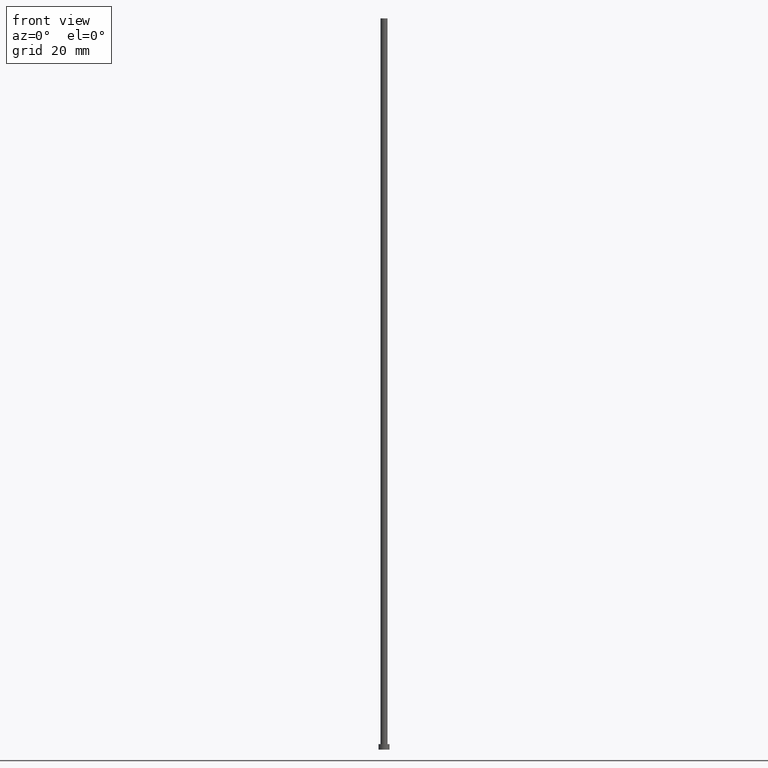
[diagram: clean part render]
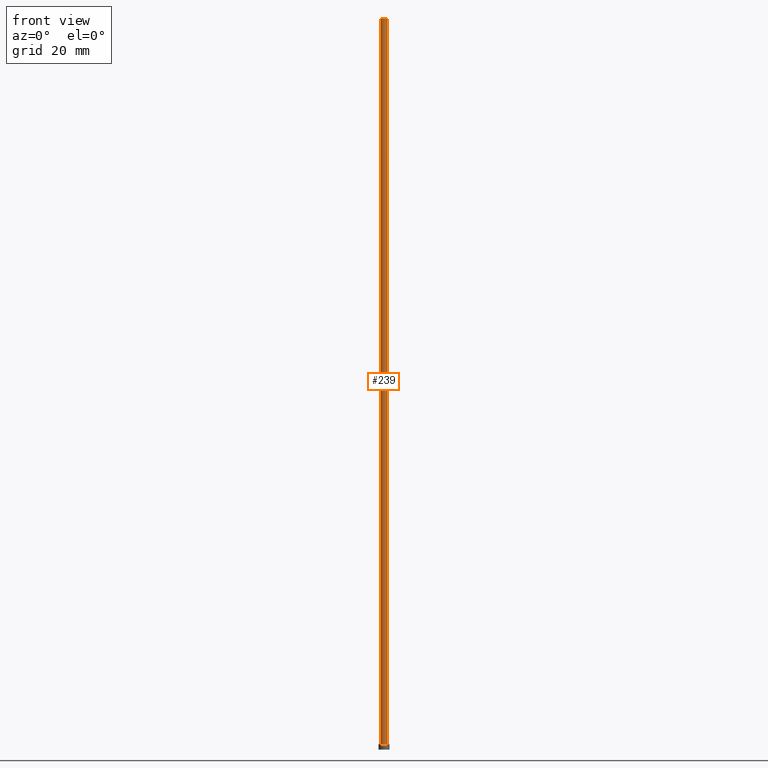
[diagram: same view with one face highlighted and labeled with its STEP entity id]
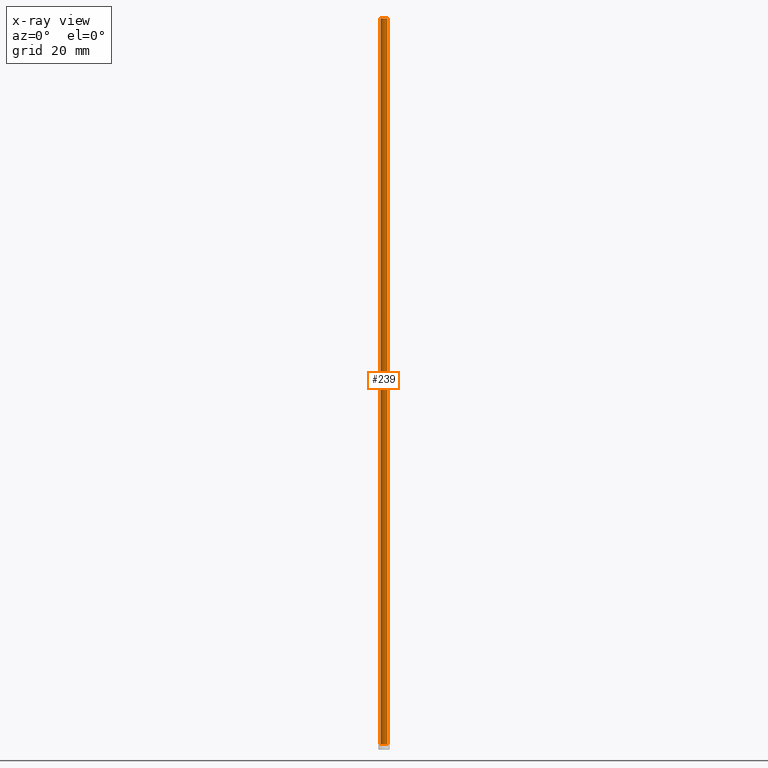
[diagram: x-ray of the same camera — body ghosted, the highlighted face saturated]
A machine part, front view. The second image highlights one B-rep face of the part: STEP entity #239.
The next image is the same camera in x-ray: the body ghosted, the highlighted face saturated — about 0% of this face is hidden behind the body in this view.
In plain terms, the highlighted cylindrical surface (edge-blend (fillet) strip) has radius 0.95 mm, axis along (-0, -0, -1).
Its self-contained STEP definition (entity closure, byte-faithful):
#10 = DIRECTION ( 'NONE',  ( 1.000000000000000000, 0.000000000000000000, 0.000000000000000000 ) ) ;
#15 = CIRCLE ( 'NONE', #196, 0.9499999999999999556 ) ;
#17 = AXIS2_PLACEMENT_3D ( 'NONE', #193, #41, #71 ) ;
#22 = LINE ( 'NONE', #104, #254 ) ;
#41 = DIRECTION ( 'NONE',  ( 0.000000000000000000, 0.000000000000000000, 1.000000000000000000 ) ) ;
#45 = ORIENTED_EDGE ( 'NONE', *, *, #126, .F. ) ;
#58 = VECTOR ( 'NONE', #131, 1000.000000000000000 ) ;
#60 = CARTESIAN_POINT ( 'NONE',  ( 0.9499999999999999556, 1.163414459189985682E-16, 200.0000000000000000 ) ) ;
#61 = ORIENTED_EDGE ( 'NONE', *, *, #237, .F. ) ;
#71 = DIRECTION ( 'NONE',  ( 1.000000000000000000, 0.000000000000000000, 0.000000000000000000 ) ) ;
#90 = FACE_OUTER_BOUND ( 'NONE', #92, .T. ) ;
#92 = EDGE_LOOP ( 'NONE', ( #61, #45, #242, #222 ) ) ;
#104 = CARTESIAN_POINT ( 'NONE',  ( 0.9499999999999999556, 1.163414459189985682E-16, 200.0000000000000000 ) ) ;
#108 = CARTESIAN_POINT ( 'NONE',  ( 0.000000000000000000, 0.000000000000000000, 200.0000000000000000 ) ) ;
#111 = VERTEX_POINT ( 'NONE', #231 ) ;
#114 = DIRECTION ( 'NONE',  ( -0.000000000000000000, -0.000000000000000000, -1.000000000000000000 ) ) ;
#126 = EDGE_CURVE ( 'NONE', #227, #188, #199, .T. ) ;
#131 = DIRECTION ( 'NONE',  ( -0.000000000000000000, -0.000000000000000000, -1.000000000000000000 ) ) ;
#133 = CARTESIAN_POINT ( 'NONE',  ( 0.9499999999999999556, 1.163414459189985682E-16, 1.500000000000000000 ) ) ;
#136 = VERTEX_POINT ( 'NONE', #133 ) ;
#146 = LINE ( 'NONE', #221, #58 ) ;
#148 = AXIS2_PLACEMENT_3D ( 'NONE', #108, #114, #250 ) ;
#154 = CARTESIAN_POINT ( 'NONE',  ( 0.000000000000000000, 0.000000000000000000, 1.500000000000000000 ) ) ;
#157 = CYLINDRICAL_SURFACE ( 'NONE', #148, 0.9499999999999999556 ) ;
#175 = EDGE_CURVE ( 'NONE', #111, #136, #15, .T. ) ;
#185 = DIRECTION ( 'NONE',  ( -0.000000000000000000, -0.000000000000000000, -1.000000000000000000 ) ) ;
#188 = VERTEX_POINT ( 'NONE', #60 ) ;
#190 = EDGE_CURVE ( 'NONE', #227, #111, #146, .T. ) ;
#193 = CARTESIAN_POINT ( 'NONE',  ( 0.000000000000000000, 0.000000000000000000, 200.0000000000000000 ) ) ;
#196 = AXIS2_PLACEMENT_3D ( 'NONE', #154, #210, #10 ) ;
#199 = CIRCLE ( 'NONE', #17, 0.9499999999999999556 ) ;
#203 = CARTESIAN_POINT ( 'NONE',  ( -0.9499999999999999556, 0.000000000000000000, 200.0000000000000000 ) ) ;
#210 = DIRECTION ( 'NONE',  ( 0.000000000000000000, 0.000000000000000000, 1.000000000000000000 ) ) ;
#221 = CARTESIAN_POINT ( 'NONE',  ( -0.9499999999999999556, 0.000000000000000000, 200.0000000000000000 ) ) ;
#222 = ORIENTED_EDGE ( 'NONE', *, *, #175, .T. ) ;
#227 = VERTEX_POINT ( 'NONE', #203 ) ;
#231 = CARTESIAN_POINT ( 'NONE',  ( -0.9499999999999999556, 0.000000000000000000, 1.500000000000000000 ) ) ;
#237 = EDGE_CURVE ( 'NONE', #188, #136, #22, .T. ) ;
#239 = ADVANCED_FACE ( 'NONE', ( #90 ), #157, .T. ) ;
#242 = ORIENTED_EDGE ( 'NONE', *, *, #190, .T. ) ;
#250 = DIRECTION ( 'NONE',  ( -1.000000000000000000, 0.000000000000000000, 0.000000000000000000 ) ) ;
#254 = VECTOR ( 'NONE', #185, 1000.000000000000000 ) ;